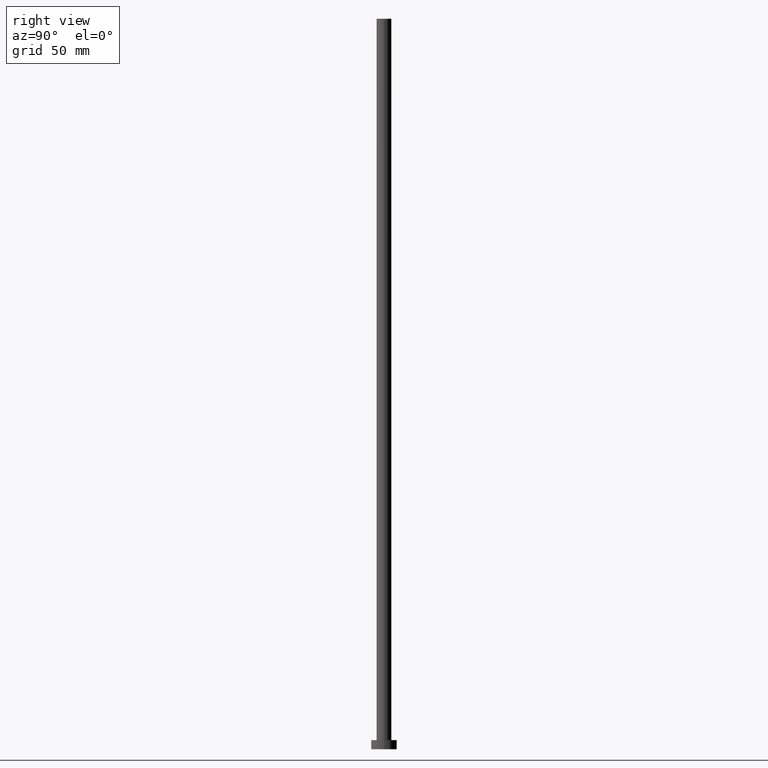
[diagram: clean part render]
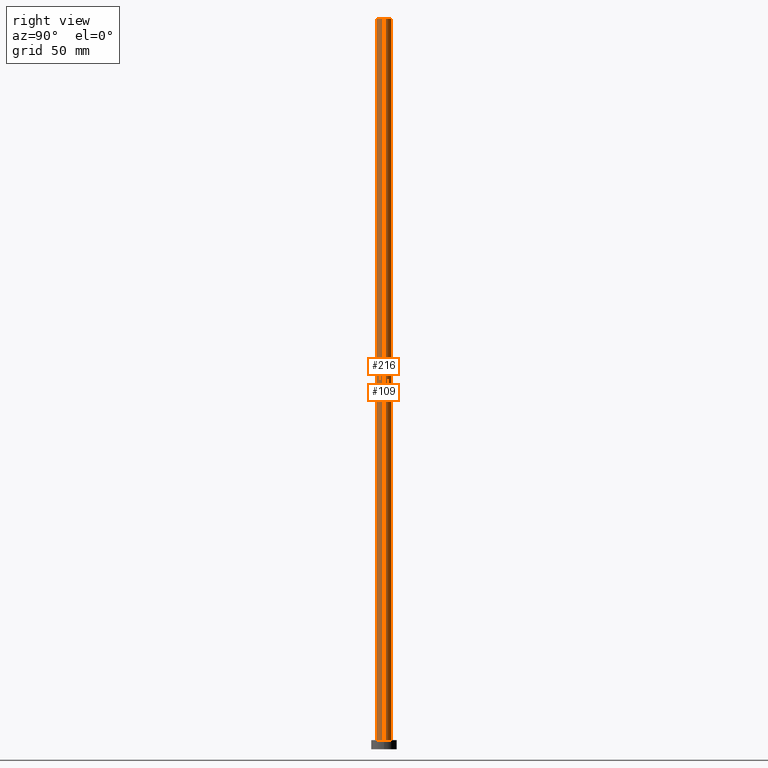
[diagram: same view with one multi-face feature highlighted, each face labeled with its STEP entity id]
A machine part, right view. The highlighted faces form ONE feature: a constant-radius fillet chain: 2 tangent blend faces with common blend radius 4.1 mm. The faces share edges in the B-rep.
Their STEP definitions:
[1] entity #109 (Cylinder):
#19 = VERTEX_POINT ( 'NONE', #26 ) ;
#26 = CARTESIAN_POINT ( 'NONE',  ( 4.099999999999999645, 5.021051876504146399E-16, 5.000000000000000000 ) ) ;
#43 = VECTOR ( 'NONE', #221, 1000.000000000000000 ) ;
#58 = CARTESIAN_POINT ( 'NONE',  ( -4.099999999999999645, 0.000000000000000000, 400.0000000000000000 ) ) ;
#77 = DIRECTION ( 'NONE',  ( -0.000000000000000000, -0.000000000000000000, -1.000000000000000000 ) ) ;
#82 = AXIS2_PLACEMENT_3D ( 'NONE', #132, #100, #137 ) ;
#83 = DIRECTION ( 'NONE',  ( 0.000000000000000000, 0.000000000000000000, 1.000000000000000000 ) ) ;
#85 = EDGE_CURVE ( 'NONE', #19, #108, #202, .T. ) ;
#88 = AXIS2_PLACEMENT_3D ( 'NONE', #228, #83, #168 ) ;
#93 = ORIENTED_EDGE ( 'NONE', *, *, #85, .T. ) ;
#97 = VERTEX_POINT ( 'NONE', #178 ) ;
#100 = DIRECTION ( 'NONE',  ( 0.000000000000000000, 0.000000000000000000, 1.000000000000000000 ) ) ;
#103 = LINE ( 'NONE', #146, #244 ) ;
#108 = VERTEX_POINT ( 'NONE', #158 ) ;
#109 = ADVANCED_FACE ( 'NONE', ( #236 ), #181, .T. ) ;
#110 = VERTEX_POINT ( 'NONE', #58 ) ;
#118 = EDGE_CURVE ( 'NONE', #97, #19, #156, .T. ) ;
#131 = ORIENTED_EDGE ( 'NONE', *, *, #118, .T. ) ;
#132 = CARTESIAN_POINT ( 'NONE',  ( 0.000000000000000000, 0.000000000000000000, 5.000000000000000000 ) ) ;
#137 = DIRECTION ( 'NONE',  ( 1.000000000000000000, 0.000000000000000000, 0.000000000000000000 ) ) ;
#138 = CARTESIAN_POINT ( 'NONE',  ( 4.099999999999999645, 5.021051876504146399E-16, 400.0000000000000000 ) ) ;
#142 = DIRECTION ( 'NONE',  ( -0.000000000000000000, -0.000000000000000000, -1.000000000000000000 ) ) ;
#146 = CARTESIAN_POINT ( 'NONE',  ( -4.099999999999999645, 0.000000000000000000, 400.0000000000000000 ) ) ;
#152 = AXIS2_PLACEMENT_3D ( 'NONE', #179, #77, #254 ) ;
#154 = ORIENTED_EDGE ( 'NONE', *, *, #157, .F. ) ;
#155 = ORIENTED_EDGE ( 'NONE', *, *, #163, .F. ) ;
#156 = LINE ( 'NONE', #138, #43 ) ;
#157 = EDGE_CURVE ( 'NONE', #110, #108, #103, .T. ) ;
#158 = CARTESIAN_POINT ( 'NONE',  ( -4.099999999999999645, 0.000000000000000000, 5.000000000000000000 ) ) ;
#163 = EDGE_CURVE ( 'NONE', #97, #110, #208, .T. ) ;
#168 = DIRECTION ( 'NONE',  ( 1.000000000000000000, 0.000000000000000000, 0.000000000000000000 ) ) ;
#178 = CARTESIAN_POINT ( 'NONE',  ( 4.099999999999999645, 5.021051876504146399E-16, 400.0000000000000000 ) ) ;
#179 = CARTESIAN_POINT ( 'NONE',  ( 0.000000000000000000, 0.000000000000000000, 400.0000000000000000 ) ) ;
#181 = CYLINDRICAL_SURFACE ( 'NONE', #152, 4.099999999999999645 ) ;
#202 = CIRCLE ( 'NONE', #82, 4.099999999999999645 ) ;
#208 = CIRCLE ( 'NONE', #88, 4.099999999999999645 ) ;
#221 = DIRECTION ( 'NONE',  ( -0.000000000000000000, -0.000000000000000000, -1.000000000000000000 ) ) ;
#228 = CARTESIAN_POINT ( 'NONE',  ( 0.000000000000000000, 0.000000000000000000, 400.0000000000000000 ) ) ;
#236 = FACE_OUTER_BOUND ( 'NONE', #247, .T. ) ;
#244 = VECTOR ( 'NONE', #142, 1000.000000000000000 ) ;
#247 = EDGE_LOOP ( 'NONE', ( #155, #131, #93, #154 ) ) ;
#254 = DIRECTION ( 'NONE',  ( -1.000000000000000000, 0.000000000000000000, 0.000000000000000000 ) ) ;
[2] entity #216 (Cylinder):
#10 = DIRECTION ( 'NONE',  ( -1.000000000000000000, 0.000000000000000000, 0.000000000000000000 ) ) ;
#12 = ORIENTED_EDGE ( 'NONE', *, *, #145, .F. ) ;
#19 = VERTEX_POINT ( 'NONE', #26 ) ;
#26 = CARTESIAN_POINT ( 'NONE',  ( 4.099999999999999645, 5.021051876504146399E-16, 5.000000000000000000 ) ) ;
#29 = DIRECTION ( 'NONE',  ( 0.000000000000000000, 0.000000000000000000, 1.000000000000000000 ) ) ;
#31 = ORIENTED_EDGE ( 'NONE', *, *, #118, .F. ) ;
#43 = VECTOR ( 'NONE', #221, 1000.000000000000000 ) ;
#55 = CIRCLE ( 'NONE', #248, 4.099999999999999645 ) ;
#56 = ORIENTED_EDGE ( 'NONE', *, *, #133, .T. ) ;
#57 = EDGE_LOOP ( 'NONE', ( #31, #12, #219, #56 ) ) ;
#58 = CARTESIAN_POINT ( 'NONE',  ( -4.099999999999999645, 0.000000000000000000, 400.0000000000000000 ) ) ;
#63 = DIRECTION ( 'NONE',  ( 1.000000000000000000, 0.000000000000000000, 0.000000000000000000 ) ) ;
#70 = AXIS2_PLACEMENT_3D ( 'NONE', #237, #211, #63 ) ;
#81 = CYLINDRICAL_SURFACE ( 'NONE', #217, 4.099999999999999645 ) ;
#97 = VERTEX_POINT ( 'NONE', #178 ) ;
#103 = LINE ( 'NONE', #146, #244 ) ;
#108 = VERTEX_POINT ( 'NONE', #158 ) ;
#110 = VERTEX_POINT ( 'NONE', #58 ) ;
#118 = EDGE_CURVE ( 'NONE', #97, #19, #156, .T. ) ;
#133 = EDGE_CURVE ( 'NONE', #108, #19, #160, .T. ) ;
#138 = CARTESIAN_POINT ( 'NONE',  ( 4.099999999999999645, 5.021051876504146399E-16, 400.0000000000000000 ) ) ;
#142 = DIRECTION ( 'NONE',  ( -0.000000000000000000, -0.000000000000000000, -1.000000000000000000 ) ) ;
#145 = EDGE_CURVE ( 'NONE', #110, #97, #55, .T. ) ;
#146 = CARTESIAN_POINT ( 'NONE',  ( -4.099999999999999645, 0.000000000000000000, 400.0000000000000000 ) ) ;
#156 = LINE ( 'NONE', #138, #43 ) ;
#157 = EDGE_CURVE ( 'NONE', #110, #108, #103, .T. ) ;
#158 = CARTESIAN_POINT ( 'NONE',  ( -4.099999999999999645, 0.000000000000000000, 5.000000000000000000 ) ) ;
#160 = CIRCLE ( 'NONE', #70, 4.099999999999999645 ) ;
#164 = CARTESIAN_POINT ( 'NONE',  ( 0.000000000000000000, 0.000000000000000000, 400.0000000000000000 ) ) ;
#178 = CARTESIAN_POINT ( 'NONE',  ( 4.099999999999999645, 5.021051876504146399E-16, 400.0000000000000000 ) ) ;
#184 = CARTESIAN_POINT ( 'NONE',  ( 0.000000000000000000, 0.000000000000000000, 400.0000000000000000 ) ) ;
#187 = DIRECTION ( 'NONE',  ( -0.000000000000000000, -0.000000000000000000, -1.000000000000000000 ) ) ;
#211 = DIRECTION ( 'NONE',  ( 0.000000000000000000, 0.000000000000000000, 1.000000000000000000 ) ) ;
#216 = ADVANCED_FACE ( 'NONE', ( #224 ), #81, .T. ) ;
#217 = AXIS2_PLACEMENT_3D ( 'NONE', #164, #187, #10 ) ;
#219 = ORIENTED_EDGE ( 'NONE', *, *, #157, .T. ) ;
#221 = DIRECTION ( 'NONE',  ( -0.000000000000000000, -0.000000000000000000, -1.000000000000000000 ) ) ;
#224 = FACE_OUTER_BOUND ( 'NONE', #57, .T. ) ;
#237 = CARTESIAN_POINT ( 'NONE',  ( 0.000000000000000000, 0.000000000000000000, 5.000000000000000000 ) ) ;
#241 = DIRECTION ( 'NONE',  ( 1.000000000000000000, 0.000000000000000000, 0.000000000000000000 ) ) ;
#244 = VECTOR ( 'NONE', #142, 1000.000000000000000 ) ;
#248 = AXIS2_PLACEMENT_3D ( 'NONE', #184, #29, #241 ) ;